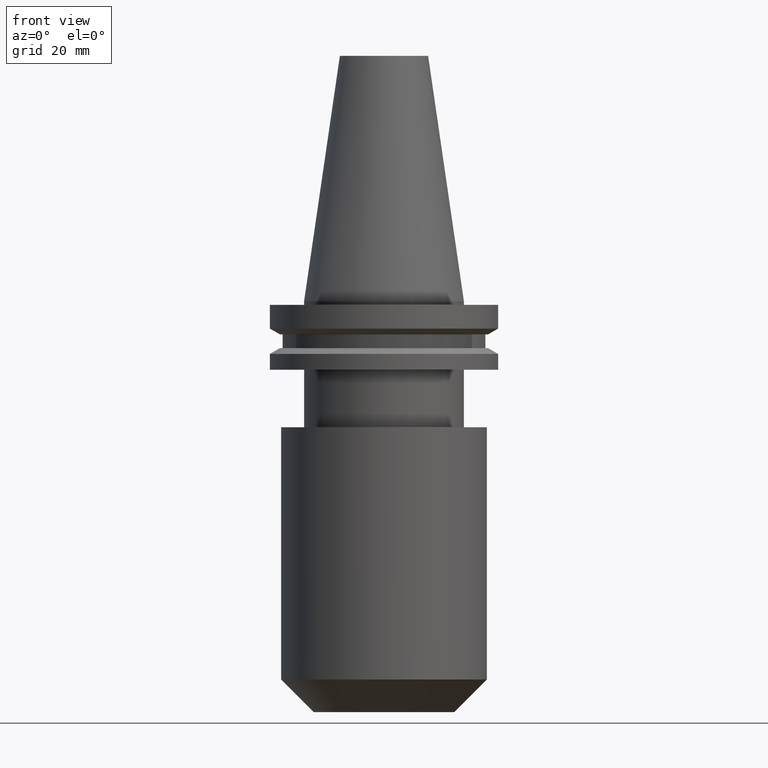
[diagram: clean part render]
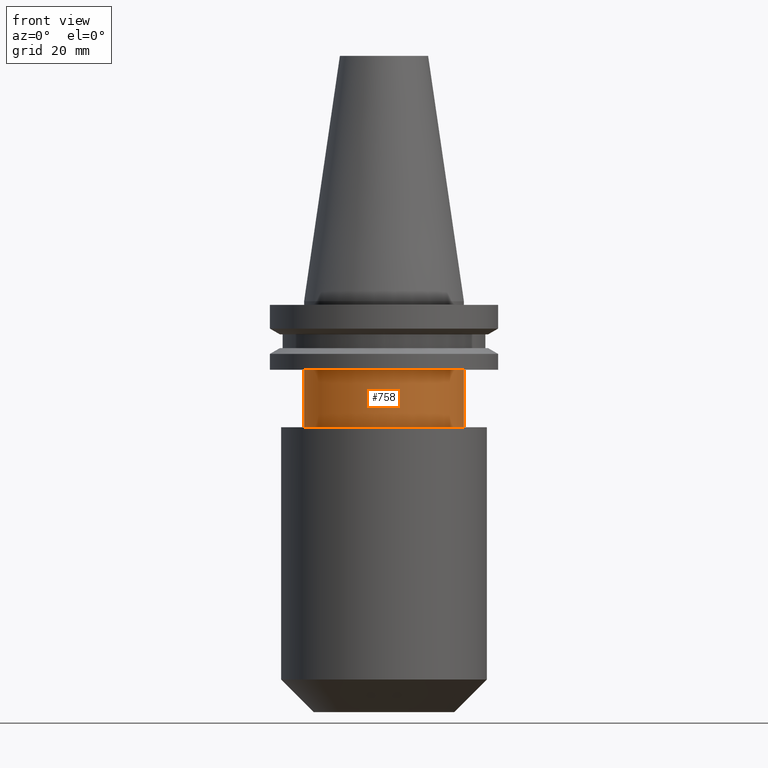
[diagram: same view with one face highlighted and labeled with its STEP entity id]
A machine part, front view. The second image highlights one B-rep face of the part: STEP entity #758.
In plain terms, the highlighted cylindrical surface (partial cylindrical patch) has radius 22.225 mm, axis along (-0, -0, 1).
Its self-contained STEP definition (entity closure, byte-faithful):
#50 = ORIENTED_EDGE ( 'NONE', *, *, #485, .F. ) ;
#100 = AXIS2_PLACEMENT_3D ( 'NONE', #756, #165, #427 ) ;
#120 = CARTESIAN_POINT ( 'NONE',  ( 0.000000000000000000, 0.000000000000000000, 68.25000000000000000 ) ) ;
#150 = ORIENTED_EDGE ( 'NONE', *, *, #642, .F. ) ;
#165 = DIRECTION ( 'NONE',  ( -0.000000000000000000, -0.000000000000000000, 1.000000000000000000 ) ) ;
#170 = CARTESIAN_POINT ( 'NONE',  ( 0.000000000000000000, 0.000000000000000000, -35.04999999999999716 ) ) ;
#203 = LINE ( 'NONE', #535, #294 ) ;
#239 = DIRECTION ( 'NONE',  ( 1.000000000000000000, 0.000000000000000000, 0.000000000000000000 ) ) ;
#294 = VECTOR ( 'NONE', #744, 1000.000000000000000 ) ;
#299 = ORIENTED_EDGE ( 'NONE', *, *, #583, .T. ) ;
#300 = DIRECTION ( 'NONE',  ( -1.000000000000000000, 0.000000000000000000, 0.000000000000000000 ) ) ;
#303 = CARTESIAN_POINT ( 'NONE',  ( -22.22500000000000142, 2.721777511104992849E-15, -19.04999999999999716 ) ) ;
#310 = DIRECTION ( 'NONE',  ( -0.000000000000000000, -0.000000000000000000, 1.000000000000000000 ) ) ;
#313 = ORIENTED_EDGE ( 'NONE', *, *, #332, .F. ) ;
#332 = EDGE_CURVE ( 'NONE', #688, #368, #637, .T. ) ;
#368 = VERTEX_POINT ( 'NONE', #554 ) ;
#385 = CARTESIAN_POINT ( 'NONE',  ( 22.22500000000000142, 0.000000000000000000, -35.04999999999999716 ) ) ;
#406 = EDGE_LOOP ( 'NONE', ( #50, #150, #299, #313 ) ) ;
#420 = VECTOR ( 'NONE', #310, 1000.000000000000000 ) ;
#427 = DIRECTION ( 'NONE',  ( 1.000000000000000000, 0.000000000000000000, 0.000000000000000000 ) ) ;
#438 = CYLINDRICAL_SURFACE ( 'NONE', #573, 22.22500000000000142 ) ;
#485 = EDGE_CURVE ( 'NONE', #829, #688, #505, .T. ) ;
#505 = LINE ( 'NONE', #764, #420 ) ;
#535 = CARTESIAN_POINT ( 'NONE',  ( 22.22500000000000142, 0.000000000000000000, 68.25000000000000000 ) ) ;
#554 = CARTESIAN_POINT ( 'NONE',  ( 22.22500000000000142, 0.000000000000000000, -19.04999999999999716 ) ) ;
#573 = AXIS2_PLACEMENT_3D ( 'NONE', #120, #697, #239 ) ;
#577 = FACE_OUTER_BOUND ( 'NONE', #406, .T. ) ;
#583 = EDGE_CURVE ( 'NONE', #738, #368, #203, .T. ) ;
#637 = CIRCLE ( 'NONE', #100, 22.22500000000000142 ) ;
#642 = EDGE_CURVE ( 'NONE', #738, #829, #677, .T. ) ;
#677 = CIRCLE ( 'NONE', #735, 22.22500000000000142 ) ;
#688 = VERTEX_POINT ( 'NONE', #303 ) ;
#697 = DIRECTION ( 'NONE',  ( -0.000000000000000000, -0.000000000000000000, 1.000000000000000000 ) ) ;
#731 = CARTESIAN_POINT ( 'NONE',  ( -22.22500000000000142, 2.721777511104992849E-15, -35.04999999999999716 ) ) ;
#735 = AXIS2_PLACEMENT_3D ( 'NONE', #170, #754, #300 ) ;
#738 = VERTEX_POINT ( 'NONE', #385 ) ;
#744 = DIRECTION ( 'NONE',  ( -0.000000000000000000, -0.000000000000000000, 1.000000000000000000 ) ) ;
#754 = DIRECTION ( 'NONE',  ( 0.000000000000000000, 0.000000000000000000, -1.000000000000000000 ) ) ;
#756 = CARTESIAN_POINT ( 'NONE',  ( 0.000000000000000000, 0.000000000000000000, -19.04999999999999716 ) ) ;
#758 = ADVANCED_FACE ( 'NONE', ( #577 ), #438, .T. ) ;
#764 = CARTESIAN_POINT ( 'NONE',  ( -22.22500000000000142, 2.721777511104992849E-15, 68.25000000000000000 ) ) ;
#829 = VERTEX_POINT ( 'NONE', #731 ) ;